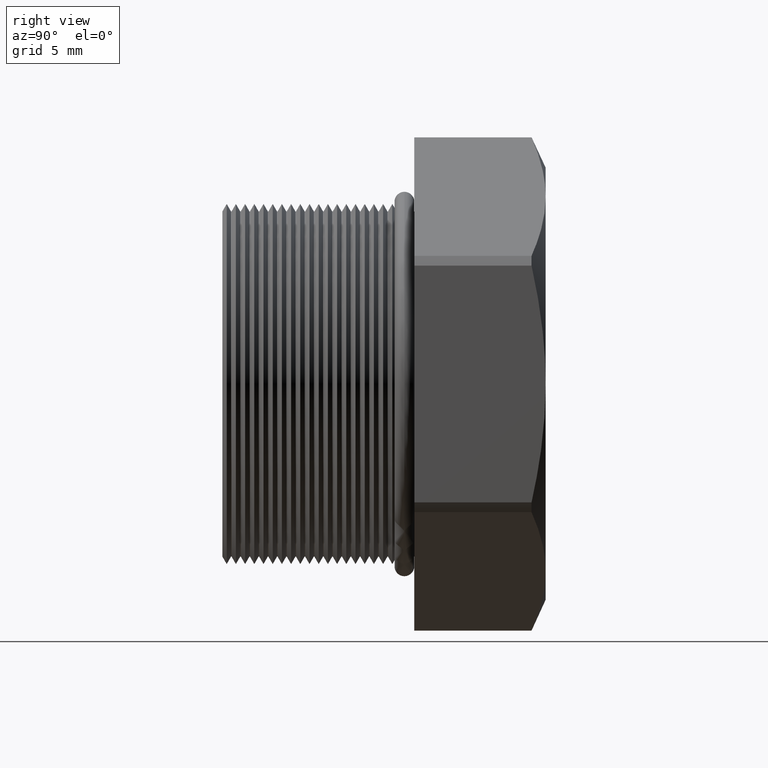
[diagram: clean part render]
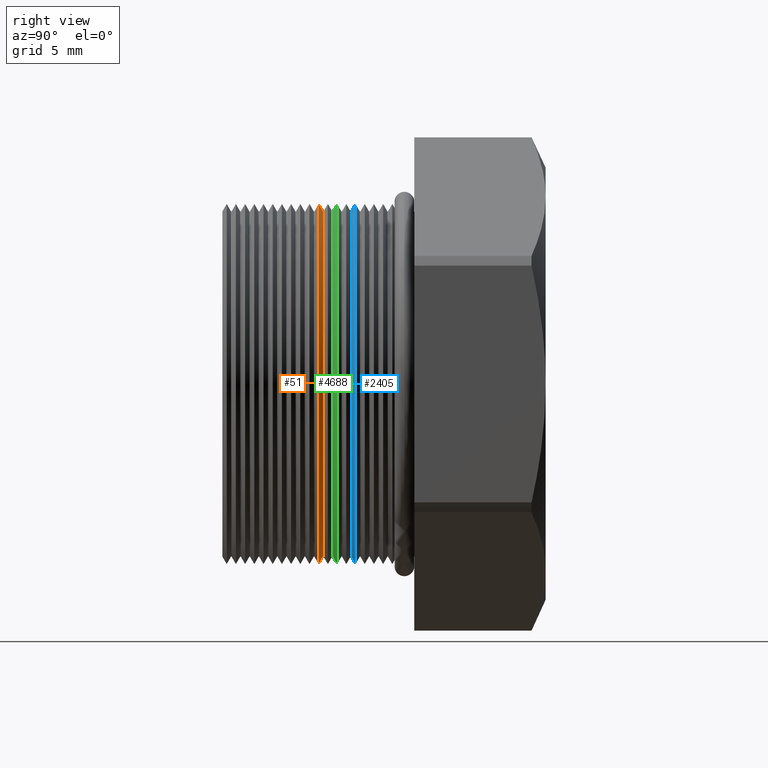
[diagram: same view with three faces highlighted in distinct colors, each labeled with its STEP entity id]
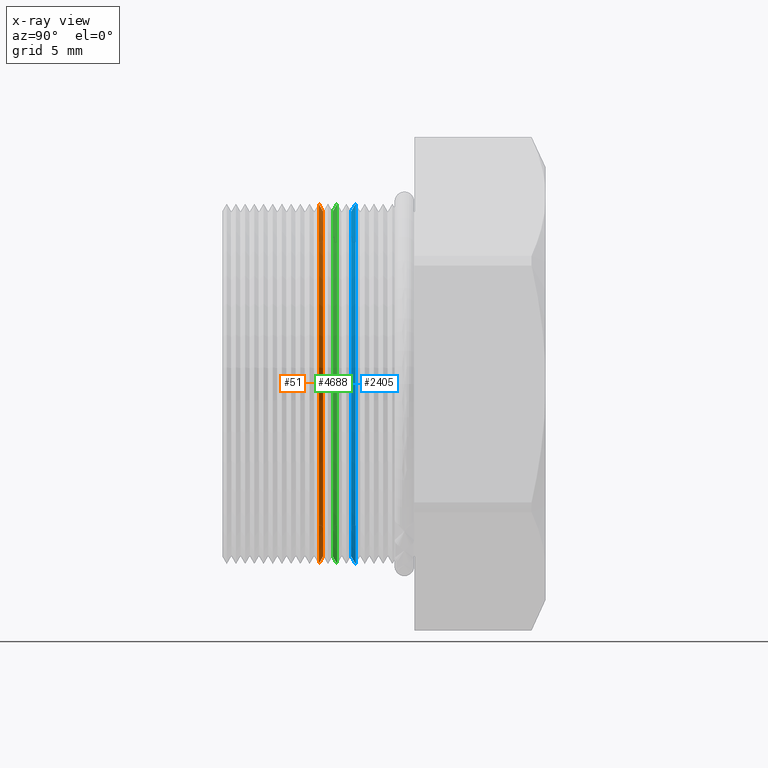
[diagram: x-ray of the same camera — body ghosted, the three highlighted faces saturated]
A machine part, right view with three faces highlighted in distinct colors.
The next image is the same camera in x-ray (body ghosted, the three faces saturated) — at least one of them is partly hidden behind the body in this view.
Their STEP definitions:

[orange] entity #51 — the highlighted conical surface has half-angle 60 deg.
#3 = VERTEX_POINT ( 'NONE', #4353 ) ;
#48 = VERTEX_POINT ( 'NONE', #4391 ) ;
#49 = EDGE_LOOP ( 'NONE', ( #3682, #3672, #3666, #3670 ) ) ;
#51 = ADVANCED_FACE ( 'NONE', ( #4450 ), #4449, .T. ) ;
#55 = EDGE_CURVE ( 'NONE', #48, #3, #4444, .T. ) ;
#3666 = ORIENTED_EDGE ( 'NONE', *, *, #55, .T. ) ;
#3667 = VERTEX_POINT ( 'NONE', #8331 ) ;
#3669 = EDGE_CURVE ( 'NONE', #3667, #3, #8329, .T. ) ;
#3670 = ORIENTED_EDGE ( 'NONE', *, *, #3669, .F. ) ;
#3672 = ORIENTED_EDGE ( 'NONE', *, *, #3674, .T. ) ;
#3673 = VERTEX_POINT ( 'NONE', #8323 ) ;
#3674 = EDGE_CURVE ( 'NONE', #3673, #48, #8318, .T. ) ;
#3681 = EDGE_CURVE ( 'NONE', #3667, #3673, #8371, .T. ) ;
#3682 = ORIENTED_EDGE ( 'NONE', *, *, #3681, .T. ) ;
#4353 = CARTESIAN_POINT ( 'NONE',  ( 0.0000000000000000000, -0.006845109417052028600, -0.3287738815610546400 ) ) ;
#4391 = CARTESIAN_POINT ( 'NONE',  ( 4.026318816969966200E-017, -0.006845109417052028600, 0.3287738815610546400 ) ) ;
#4440 = DIRECTION ( 'NONE',  ( 0.0000000000000000000, 0.0000000000000000000, 1.000000000000000000 ) ) ;
#4441 = DIRECTION ( 'NONE',  ( -0.0000000000000000000, 1.000000000000000000, -0.0000000000000000000 ) ) ;
#4442 = CARTESIAN_POINT ( 'NONE',  ( 0.0000000000000000000, -0.006845109417052028600, 0.0000000000000000000 ) ) ;
#4443 = AXIS2_PLACEMENT_3D ( 'NONE', #4442, #4441, #4440 ) ;
#4444 = CIRCLE ( 'NONE', #4443, 0.3287738815610546400 ) ;
#4445 = DIRECTION ( 'NONE',  ( 0.0000000000000000000, 0.0000000000000000000, -1.000000000000000000 ) ) ;
#4446 = DIRECTION ( 'NONE',  ( 0.0000000000000000000, -1.000000000000000000, 0.0000000000000000000 ) ) ;
#4447 = CARTESIAN_POINT ( 'NONE',  ( 0.0000000000000000000, 0.001107244810008916600, 0.0000000000000000000 ) ) ;
#4448 = AXIS2_PLACEMENT_3D ( 'NONE', #4447, #4446, #4445 ) ;
#4449 = CONICAL_SURFACE ( 'NONE', #4448, 0.3150000000000000000, 1.047197551196596700 ) ;
#4450 = FACE_OUTER_BOUND ( 'NONE', #49, .T. ) ;
#8315 = DIRECTION ( 'NONE',  ( 1.060575238724906300E-016, -0.5000000000000008900, 0.8660254037844380400 ) ) ;
#8316 = VECTOR ( 'NONE', #8315, 39.37007874015748100 ) ;
#8317 = CARTESIAN_POINT ( 'NONE',  ( 3.857637417314162700E-017, 0.001107244810008916600, 0.3150000000000000000 ) ) ;
#8318 = LINE ( 'NONE', #8317, #8316 ) ;
#8323 = CARTESIAN_POINT ( 'NONE',  ( 3.857637417314162700E-017, 0.001107244810008916600, 0.3150000000000000000 ) ) ;
#8326 = DIRECTION ( 'NONE',  ( 0.0000000000000000000, -0.5000000000000008900, -0.8660254037844380400 ) ) ;
#8327 = VECTOR ( 'NONE', #8326, 39.37007874015748100 ) ;
#8328 = CARTESIAN_POINT ( 'NONE',  ( 0.0000000000000000000, 0.001107244810008916600, -0.3150000000000000000 ) ) ;
#8329 = LINE ( 'NONE', #8328, #8327 ) ;
#8331 = CARTESIAN_POINT ( 'NONE',  ( 0.0000000000000000000, 0.001107244810008916600, -0.3150000000000000000 ) ) ;
#8367 = DIRECTION ( 'NONE',  ( 0.0000000000000000000, 0.0000000000000000000, -1.000000000000000000 ) ) ;
#8368 = DIRECTION ( 'NONE',  ( 0.0000000000000000000, -1.000000000000000000, 0.0000000000000000000 ) ) ;
#8369 = CARTESIAN_POINT ( 'NONE',  ( 0.0000000000000000000, 0.001107244810008916600, 0.0000000000000000000 ) ) ;
#8370 = AXIS2_PLACEMENT_3D ( 'NONE', #8369, #8368, #8367 ) ;
#8371 = CIRCLE ( 'NONE', #8370, 0.3150000000000000000 ) ;

[blue] entity #2405 — the highlighted conical surface has half-angle 60 deg.
#2367 = EDGE_CURVE ( 'NONE', #2470, #2469, #6786, .T. ) ;
#2373 = EDGE_LOOP ( 'NONE', ( #2379, #2471, #2477, #2467 ) ) ;
#2379 = ORIENTED_EDGE ( 'NONE', *, *, #2367, .T. ) ;
#2405 = ADVANCED_FACE ( 'NONE', ( #6843 ), #6838, .T. ) ;
#2462 = EDGE_CURVE ( 'NONE', #2470, #2479, #6977, .T. ) ;
#2467 = ORIENTED_EDGE ( 'NONE', *, *, #2462, .F. ) ;
#2469 = VERTEX_POINT ( 'NONE', #6968 ) ;
#2470 = VERTEX_POINT ( 'NONE', #6967 ) ;
#2471 = ORIENTED_EDGE ( 'NONE', *, *, #2476, .T. ) ;
#2473 = EDGE_CURVE ( 'NONE', #2479, #2475, #7023, .T. ) ;
#2475 = VERTEX_POINT ( 'NONE', #7018 ) ;
#2476 = EDGE_CURVE ( 'NONE', #2469, #2475, #7017, .T. ) ;
#2477 = ORIENTED_EDGE ( 'NONE', *, *, #2473, .F. ) ;
#2479 = VERTEX_POINT ( 'NONE', #7012 ) ;
#6782 = DIRECTION ( 'NONE',  ( 0.0000000000000000000, 0.0000000000000000000, 1.000000000000000000 ) ) ;
#6783 = DIRECTION ( 'NONE',  ( -0.0000000000000000000, 1.000000000000000000, -0.0000000000000000000 ) ) ;
#6784 = CARTESIAN_POINT ( 'NONE',  ( 0.0000000000000000000, 0.05240253635588705500, 0.0000000000000000000 ) ) ;
#6785 = AXIS2_PLACEMENT_3D ( 'NONE', #6784, #6783, #6782 ) ;
#6786 = CIRCLE ( 'NONE', #6785, 0.3150000000000000000 ) ;
#6835 = DIRECTION ( 'NONE',  ( -0.0000000000000000000, 1.000000000000000000, -0.0000000000000000000 ) ) ;
#6836 = CARTESIAN_POINT ( 'NONE',  ( 0.0000000000000000000, 0.06035489058294796900, 0.0000000000000000000 ) ) ;
#6837 = AXIS2_PLACEMENT_3D ( 'NONE', #6836, #6835, #6898 ) ;
#6838 = CONICAL_SURFACE ( 'NONE', #6837, 0.3287738815610546400, 1.047197551196598700 ) ;
#6843 = FACE_OUTER_BOUND ( 'NONE', #2373, .T. ) ;
#6898 = DIRECTION ( 'NONE',  ( 0.0000000000000000000, 0.0000000000000000000, 1.000000000000000000 ) ) ;
#6967 = CARTESIAN_POINT ( 'NONE',  ( 3.857637417314162700E-017, 0.05240253635588705500, 0.3150000000000000000 ) ) ;
#6968 = CARTESIAN_POINT ( 'NONE',  ( 0.0000000000000000000, 0.05240253635588705500, -0.3150000000000000000 ) ) ;
#6974 = DIRECTION ( 'NONE',  ( 0.0000000000000000000, 0.4999999999999991100, 0.8660254037844391500 ) ) ;
#6975 = VECTOR ( 'NONE', #6974, 39.37007874015748100 ) ;
#6976 = CARTESIAN_POINT ( 'NONE',  ( 0.0000000000000000000, 0.06035489058294796900, 0.3287738815610546400 ) ) ;
#6977 = LINE ( 'NONE', #6976, #6975 ) ;
#7012 = CARTESIAN_POINT ( 'NONE',  ( 4.026318816969966200E-017, 0.06035489058294796900, 0.3287738815610546400 ) ) ;
#7014 = DIRECTION ( 'NONE',  ( 1.060575238724907500E-016, 0.4999999999999991100, -0.8660254037844391500 ) ) ;
#7015 = VECTOR ( 'NONE', #7014, 39.37007874015748100 ) ;
#7016 = CARTESIAN_POINT ( 'NONE',  ( 4.026318816969965600E-017, 0.06035489058294796900, -0.3287738815610546400 ) ) ;
#7017 = LINE ( 'NONE', #7016, #7015 ) ;
#7018 = CARTESIAN_POINT ( 'NONE',  ( 0.0000000000000000000, 0.06035489058294796900, -0.3287738815610546400 ) ) ;
#7019 = DIRECTION ( 'NONE',  ( 0.0000000000000000000, 0.0000000000000000000, 1.000000000000000000 ) ) ;
#7020 = DIRECTION ( 'NONE',  ( -0.0000000000000000000, 1.000000000000000000, -0.0000000000000000000 ) ) ;
#7021 = CARTESIAN_POINT ( 'NONE',  ( 0.0000000000000000000, 0.06035489058294796900, 0.0000000000000000000 ) ) ;
#7022 = AXIS2_PLACEMENT_3D ( 'NONE', #7021, #7020, #7019 ) ;
#7023 = CIRCLE ( 'NONE', #7022, 0.3287738815610546400 ) ;

[green] entity #4688 — the highlighted conical surface has half-angle 60 deg.
#860 = DIRECTION ( 'NONE',  ( 0.0000000000000000000, 0.0000000000000000000, 1.000000000000000000 ) ) ;
#861 = DIRECTION ( 'NONE',  ( -0.0000000000000000000, 1.000000000000000000, -0.0000000000000000000 ) ) ;
#862 = AXIS2_PLACEMENT_3D ( 'NONE', #866, #861, #860 ) ;
#863 = CONICAL_SURFACE ( 'NONE', #862, 0.3287738815610546400, 1.047197551196598700 ) ;
#866 = CARTESIAN_POINT ( 'NONE',  ( 0.0000000000000000000, 0.02675489058294797100, 0.0000000000000000000 ) ) ;
#867 = FACE_OUTER_BOUND ( 'NONE', #3710, .T. ) ;
#2346 = EDGE_CURVE ( 'NONE', #3700, #3689, #6765, .T. ) ;
#2347 = ORIENTED_EDGE ( 'NONE', *, *, #2346, .F. ) ;
#3689 = VERTEX_POINT ( 'NONE', #8354 ) ;
#3694 = VERTEX_POINT ( 'NONE', #8406 ) ;
#3695 = VERTEX_POINT ( 'NONE', #8405 ) ;
#3696 = ORIENTED_EDGE ( 'NONE', *, *, #3697, .F. ) ;
#3697 = EDGE_CURVE ( 'NONE', #3689, #3694, #8404, .T. ) ;
#3698 = EDGE_CURVE ( 'NONE', #3695, #3694, #8399, .T. ) ;
#3699 = ORIENTED_EDGE ( 'NONE', *, *, #3698, .T. ) ;
#3700 = VERTEX_POINT ( 'NONE', #8395 ) ;
#3702 = ORIENTED_EDGE ( 'NONE', *, *, #3703, .T. ) ;
#3703 = EDGE_CURVE ( 'NONE', #3700, #3695, #8388, .T. ) ;
#3710 = EDGE_LOOP ( 'NONE', ( #3702, #3699, #3696, #2347 ) ) ;
#4688 = ADVANCED_FACE ( 'NONE', ( #867 ), #863, .T. ) ;
#6762 = DIRECTION ( 'NONE',  ( 0.0000000000000000000, 0.4999999999999991100, 0.8660254037844391500 ) ) ;
#6763 = VECTOR ( 'NONE', #6762, 39.37007874015748100 ) ;
#6764 = CARTESIAN_POINT ( 'NONE',  ( 0.0000000000000000000, 0.02675489058294797100, 0.3287738815610546400 ) ) ;
#6765 = LINE ( 'NONE', #6764, #6763 ) ;
#8354 = CARTESIAN_POINT ( 'NONE',  ( 4.026318816969966200E-017, 0.02675489058294797100, 0.3287738815610546400 ) ) ;
#8384 = DIRECTION ( 'NONE',  ( 0.0000000000000000000, 0.0000000000000000000, 1.000000000000000000 ) ) ;
#8385 = DIRECTION ( 'NONE',  ( -0.0000000000000000000, 1.000000000000000000, -0.0000000000000000000 ) ) ;
#8386 = CARTESIAN_POINT ( 'NONE',  ( 0.0000000000000000000, 0.01880253635588706500, 0.0000000000000000000 ) ) ;
#8387 = AXIS2_PLACEMENT_3D ( 'NONE', #8386, #8385, #8384 ) ;
#8388 = CIRCLE ( 'NONE', #8387, 0.3150000000000000000 ) ;
#8395 = CARTESIAN_POINT ( 'NONE',  ( 3.857637417314162700E-017, 0.01880253635588706500, 0.3150000000000000000 ) ) ;
#8396 = DIRECTION ( 'NONE',  ( 1.060575238724907500E-016, 0.4999999999999991100, -0.8660254037844391500 ) ) ;
#8397 = VECTOR ( 'NONE', #8396, 39.37007874015748100 ) ;
#8398 = CARTESIAN_POINT ( 'NONE',  ( 4.026318816969965600E-017, 0.02675489058294797100, -0.3287738815610546400 ) ) ;
#8399 = LINE ( 'NONE', #8398, #8397 ) ;
#8400 = DIRECTION ( 'NONE',  ( 0.0000000000000000000, 0.0000000000000000000, 1.000000000000000000 ) ) ;
#8401 = DIRECTION ( 'NONE',  ( -0.0000000000000000000, 1.000000000000000000, -0.0000000000000000000 ) ) ;
#8402 = CARTESIAN_POINT ( 'NONE',  ( 0.0000000000000000000, 0.02675489058294797100, 0.0000000000000000000 ) ) ;
#8403 = AXIS2_PLACEMENT_3D ( 'NONE', #8402, #8401, #8400 ) ;
#8404 = CIRCLE ( 'NONE', #8403, 0.3287738815610546400 ) ;
#8405 = CARTESIAN_POINT ( 'NONE',  ( 0.0000000000000000000, 0.01880253635588706500, -0.3150000000000000000 ) ) ;
#8406 = CARTESIAN_POINT ( 'NONE',  ( 0.0000000000000000000, 0.02675489058294797100, -0.3287738815610546400 ) ) ;